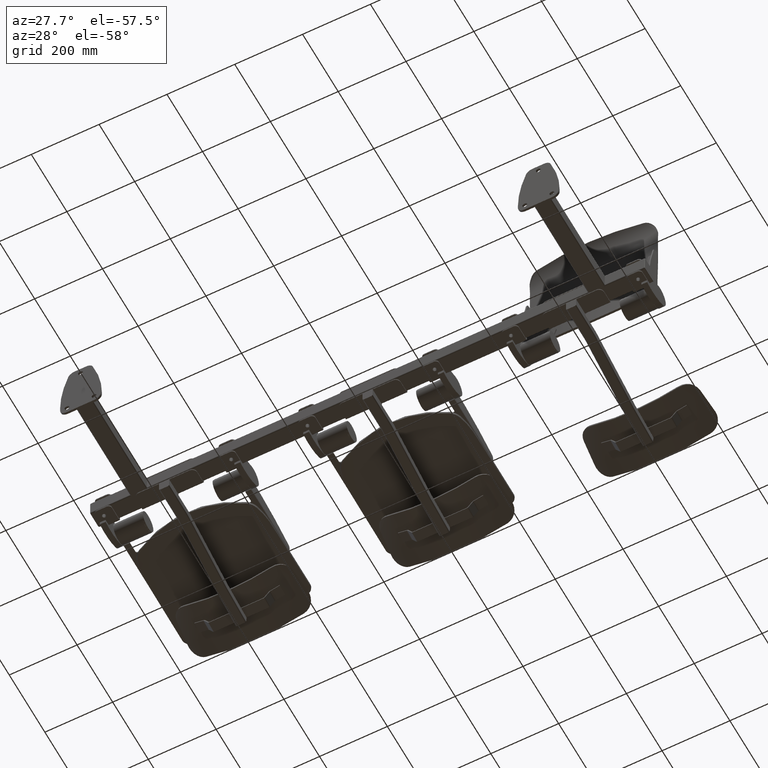
[diagram: clean part render]
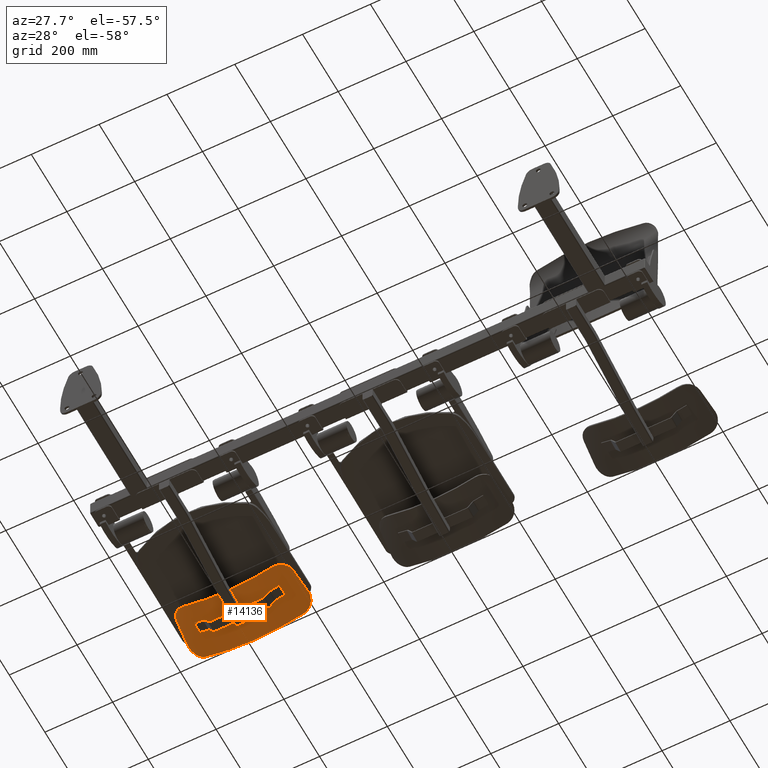
[diagram: same view with one face highlighted and labeled with its STEP entity id]
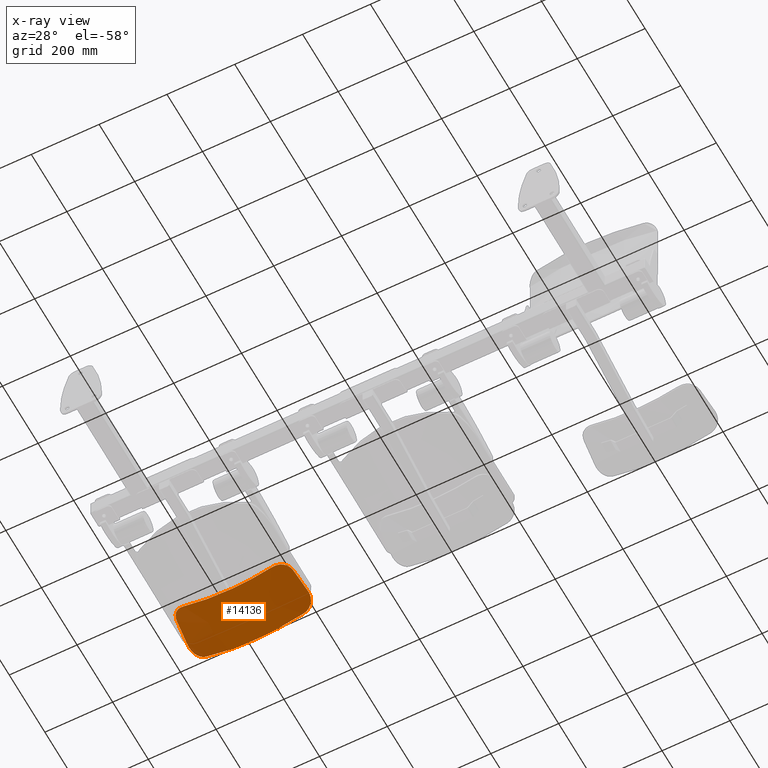
[diagram: x-ray of the same camera — body ghosted, the highlighted face saturated]
A machine part, auxiliary view. The second image highlights one B-rep face of the part: STEP entity #14136.
The next image is the same camera in x-ray: the body ghosted, the highlighted face saturated — about 0% of this face is hidden behind the body in this view.
In plain terms, the highlighted face is a freeform B-spline surface patch.
Its self-contained STEP definition (entity closure, byte-faithful):
#97 = B_SPLINE_CURVE_WITH_KNOTS ( 'NONE', 3,
 ( #20844, #20789, #20846, #20847, #20848, #20849, #20850, #20851, #20852, #20853, #20854, #20855, #20856, #20857, #20858, #20859, #20860, #20861 ),
 .UNSPECIFIED., .F., .F.,
 ( 4, 2, 2, 2, 2, 2, 2, 2, 4 ),
 ( 0.1108544489152107900, 0.1249999999999998900, 0.2499999999999999200, 0.3749999999999999400, 0.4999999999999999400, 0.6249999999999998900, 0.7500000000000000000, 0.8749999999999998900, 0.8891448651407295500 ),
 .UNSPECIFIED. ) ;
#107 = B_SPLINE_CURVE_WITH_KNOTS ( 'NONE', 3,
 ( #20971, #20958, #20973, #20974, #20975, #20976, #20977, #20978, #20979, #20980, #20981, #20982, #20983, #20984, #20985, #20986, #20987, #20988 ),
 .UNSPECIFIED., .F., .F.,
 ( 4, 2, 2, 2, 2, 2, 2, 2, 4 ),
 ( 0.1162696076019657700, 0.1249999999999999200, 0.2499999999999998900, 0.3749999999999998900, 0.4999999999999998900, 0.6250000000000000000, 0.7500000000000000000, 0.8750000000000001100, 0.8837303923980338600 ),
 .UNSPECIFIED. ) ;
#110 = B_SPLINE_CURVE_WITH_KNOTS ( 'NONE', 3,
 ( #20919, #20905, #20920, #20921, #20922, #20923, #20924, #20925, #20926, #20927, #20928, #20929 ),
 .UNSPECIFIED., .F., .F.,
 ( 4, 2, 2, 2, 2, 4 ),
 ( 0.2723681143558833700, 0.3750000000000001100, 0.5000000000000000000, 0.5625000000000000000, 0.6250000000000000000, 0.7400659818056118900 ),
 .UNSPECIFIED. ) ;
#895 = VERTEX_POINT ( 'NONE', #11287 ) ;
#1455 = ORIENTED_EDGE ( 'NONE', *, *, #14450, .F. ) ;
#1457 = ORIENTED_EDGE ( 'NONE', *, *, #14456, .F. ) ;
#1461 = ORIENTED_EDGE ( 'NONE', *, *, #14445, .F. ) ;
#1462 = ORIENTED_EDGE ( 'NONE', *, *, #14465, .T. ) ;
#1464 = ORIENTED_EDGE ( 'NONE', *, *, #14464, .T. ) ;
#1470 = ORIENTED_EDGE ( 'NONE', *, *, #14467, .T. ) ;
#1473 = ORIENTED_EDGE ( 'NONE', *, *, #14454, .F. ) ;
#1476 = ORIENTED_EDGE ( 'NONE', *, *, #14466, .T. ) ;
#4345 = EDGE_LOOP ( 'NONE', ( #1455, #1464, #1461, #1462, #1457, #1476, #1473, #1470 ) ) ;
#5401 = B_SPLINE_CURVE_WITH_KNOTS ( 'NONE', 3,
 ( #21247, #21246, #21280, #21281, #21282, #21283, #21284, #21285, #21286, #21287, #21288, #21289, #21290, #21291, #21292, #21293, #21294, #21295, #21296, #21297, #21298, #21299, #21300, #21301, #21302, #21303, #21304, #21305, #21306, #21307, #21308, #21309 ),
 .UNSPECIFIED., .F., .F.,
 ( 4, 2, 2, 2, 2, 2, 2, 2, 2, 2, 2, 2, 2, 2, 2, 4 ),
 ( 0.0000000000000000000, 0.008231823799229586200, 0.01234773569884438000, 0.01440569164865177600, 0.01646364759845917200, 0.02469547139768877400, 0.02881138329730354600, 0.03086933924711095600, 0.03292729519691836600, 0.04115911899614813800, 0.04527503089576302700, 0.04939094279537791000, 0.05762276659460766800, 0.05968072254441510200, 0.06173867849422252900, 0.06585459039383743900 ),
 .UNSPECIFIED. ) ;
#5405 = B_SPLINE_CURVE_WITH_KNOTS ( 'NONE', 3,
 ( #21212, #21213, #21248, #21249, #21250, #21251, #21252, #21253, #21254, #21255, #21256, #21257, #21258, #21259, #21260, #21261, #21262, #21263, #21264, #21265, #21266, #21267, #21268, #21269, #21270, #21271, #21272, #21273, #21274, #21275, #21276, #21277 ),
 .UNSPECIFIED., .F., .F.,
 ( 4, 2, 2, 2, 2, 2, 2, 2, 2, 2, 2, 2, 2, 2, 2, 4 ),
 ( 0.0000000000000000000, 0.008231700983185012400, 0.01234755147477750700, 0.01440547672057374500, 0.01646340196636998000, 0.02469510294955501100, 0.02881095344114753200, 0.03086887868694378500, 0.03292680393274004900, 0.04115850491592492500, 0.04527435540751736900, 0.04939020589910980000, 0.05762190688229469600, 0.05967983212809094300, 0.06173775737388717500, 0.06585360786547966900 ),
 .UNSPECIFIED. ) ;
#5409 = B_SPLINE_CURVE_WITH_KNOTS ( 'NONE', 3,
 ( #21178, #21179, #21214, #21215, #21216, #21217, #21218, #21219, #21220, #21221, #21222, #21223, #21224, #21225, #21226, #21227, #21228, #21229, #21230, #21231, #21232, #21233, #21234, #21235, #21236, #21237, #21238, #21239, #21240, #21241, #21242, #21243, #21244, #21245 ),
 .UNSPECIFIED., .F., .F.,
 ( 4, 2, 2, 2, 2, 2, 2, 2, 2, 2, 2, 2, 2, 2, 2, 2, 4 ),
 ( 0.0000000000000000000, 0.008156312601817594700, 0.01223446890272639000, 0.01427354705318075900, 0.01631262520363512700, 0.02446893780545257900, 0.02650801595590697100, 0.02854709410636136300, 0.03262525040727020500, 0.03670340670817905100, 0.03874248485863344300, 0.04078156300908783400, 0.04893787561090535300, 0.05301603191181411500, 0.05505511006226850700, 0.05709418821272288500, 0.06525050081454042400 ),
 .UNSPECIFIED. ) ;
#5414 = B_SPLINE_CURVE_WITH_KNOTS ( 'NONE', 3,
 ( #21145, #21144, #21180, #21181, #21182, #21183, #21184, #21185, #21186, #21187, #21188, #21189, #21190, #21191, #21192, #21193, #21194, #21195, #21196, #21197, #21198, #21199, #21200, #21201, #21202, #21203, #21204, #21205, #21206, #21207, #21208, #21209, #21210, #21211 ),
 .UNSPECIFIED., .F., .F.,
 ( 4, 2, 2, 2, 2, 2, 2, 2, 2, 2, 2, 2, 2, 2, 2, 2, 4 ),
 ( 0.0000000000000000000, 0.008155868848908414200, 0.01223380327336259600, 0.01427277048558967300, 0.01631173769781674900, 0.02446760654672505400, 0.02650657375895207000, 0.02854554097117909000, 0.03262347539563312900, 0.03670140982008717600, 0.03874037703231415800, 0.04077934424454114600, 0.04893521309344918400, 0.05301314751790319600, 0.05505211473013020600, 0.05709108194235721500, 0.06524695079126512100 ),
 .UNSPECIFIED. ) ;
#5463 = B_SPLINE_CURVE_WITH_KNOTS ( 'NONE', 3,
 ( #21000, #20990, #20989, #21001, #21002, #21003, #21004, #21005, #21006, #21007, #21008, #21009 ),
 .UNSPECIFIED., .F., .F.,
 ( 4, 2, 2, 2, 2, 4 ),
 ( 0.2599340181943893800, 0.3749999999999999400, 0.4375000000000000000, 0.5000000000000000000, 0.6250000000000000000, 0.7276299605303314700 ),
 .UNSPECIFIED. ) ;
#10907 = FACE_OUTER_BOUND ( 'NONE', #4345, .T. ) ;
#11248 = VERTEX_POINT ( 'NONE', #22773 ) ;
#11287 = CARTESIAN_POINT ( 'NONE',  ( 144.1624299881570400, 154.9999999999998600, 45.20710414002948600 ) ) ;
#12838 = VERTEX_POINT ( 'NONE', #23032 ) ;
#14136 = ADVANCED_FACE ( 'NONE', ( #10907 ), #22152, .F. ) ;
#14445 = EDGE_CURVE ( 'NONE', #895, #11248, #97, .T. ) ;
#14450 = EDGE_CURVE ( 'NONE', #22184, #22185, #110, .T. ) ;
#14454 = EDGE_CURVE ( 'NONE', #22190, #12838, #107, .T. ) ;
#14456 = EDGE_CURVE ( 'NONE', #22186, #22188, #5463, .T. ) ;
#14464 = EDGE_CURVE ( 'NONE', #22184, #11248, #5414, .T. ) ;
#14465 = EDGE_CURVE ( 'NONE', #895, #22188, #5409, .T. ) ;
#14466 = EDGE_CURVE ( 'NONE', #22186, #12838, #5405, .T. ) ;
#14467 = EDGE_CURVE ( 'NONE', #22190, #22185, #5401, .T. ) ;
#19397 = CARTESIAN_POINT ( 'NONE',  ( -167.4999999999999400, 0.0000000000000000000, 64.49999999999994300 ) ) ;
#19405 = CARTESIAN_POINT ( 'NONE',  ( -168.5914791579622000, 11.66738367624997600, 65.25309056229387700 ) ) ;
#19406 = CARTESIAN_POINT ( 'NONE',  ( -170.6185608308821600, 33.33590519452511800, 66.65172109567493000 ) ) ;
#19407 = CARTESIAN_POINT ( 'NONE',  ( -172.6746097194041700, 55.31566962807468700, 67.51349426770454400 ) ) ;
#19408 = CARTESIAN_POINT ( 'NONE',  ( -174.5467117177509500, 75.32681104483067700, 68.11579973968629500 ) ) ;
#19409 = CARTESIAN_POINT ( 'NONE',  ( -176.4243382472012300, 95.39814877623979300, 68.57744446168921100 ) ) ;
#19410 = CARTESIAN_POINT ( 'NONE',  ( -179.1926750639894400, 124.9906517169384000, 66.95068100640462200 ) ) ;
#19411 = CARTESIAN_POINT ( 'NONE',  ( -181.0642250213256500, 144.9968881589977900, 64.84981196530134200 ) ) ;
#19412 = CARTESIAN_POINT ( 'NONE',  ( -182.0000000000001700, 155.0000000000000000, 63.80000000000002600 ) ) ;
#19413 = CARTESIAN_POINT ( 'NONE',  ( -154.6571283212084900, 0.0000000000000000000, 57.71986695851752100 ) ) ;
#19414 = CARTESIAN_POINT ( 'NONE',  ( -155.6762664627499600, 11.66738367624997600, 58.39479436469395800 ) ) ;
#19415 = CARTESIAN_POINT ( 'NONE',  ( -157.5689972893737300, 33.33590519452511800, 59.64826124551459000 ) ) ;
#19416 = CARTESIAN_POINT ( 'NONE',  ( -159.5158178571734300, 55.31566962807468700, 60.28653911574905100 ) ) ;
#19417 = CARTESIAN_POINT ( 'NONE',  ( -161.2739626834781500, 75.32681104483067700, 60.72769316873909400 ) ) ;
#19418 = CARTESIAN_POINT ( 'NONE',  ( -163.0242000741272900, 95.39814877623979300, 61.06603398131417700 ) ) ;
#19419 = CARTESIAN_POINT ( 'NONE',  ( -165.6540993047142400, 124.9906517169384000, 59.12050371882956800 ) ) ;
#19420 = CARTESIAN_POINT ( 'NONE',  ( -167.3456108185948500, 144.9968881589977900, 57.04594139340942100 ) ) ;
#19421 = CARTESIAN_POINT ( 'NONE',  ( -168.1913665755409700, 154.9999999999999700, 56.00928278594975000 ) ) ;
#19422 = CARTESIAN_POINT ( 'NONE',  ( -128.1471568551529000, 0.0000000000000000000, 45.72092201295564700 ) ) ;
#19423 = CARTESIAN_POINT ( 'NONE',  ( -129.0079820283047000, 11.66738367625003300, 46.25616529219157500 ) ) ;
#19424 = CARTESIAN_POINT ( 'NONE',  ( -130.6066959564221600, 33.33590519452527400, 47.25021252981208200 ) ) ;
#19425 = CARTESIAN_POINT ( 'NONE',  ( -132.2897645386945800, 55.31566962807456600, 47.48680232434819700 ) ) ;
#19426 = CARTESIAN_POINT ( 'NONE',  ( -133.7892944625101000, 75.32681104483053500, 47.63897793636257200 ) ) ;
#19427 = CARTESIAN_POINT ( 'NONE',  ( -135.2634841998795700, 95.39814877623980700, 47.75695150643785800 ) ) ;
#19428 = CARTESIAN_POINT ( 'NONE',  ( -137.5493525209828600, 124.9906517169382600, 45.23725119491820100 ) ) ;
#19429 = CARTESIAN_POINT ( 'NONE',  ( -138.8980631781968800, 144.9968881589974500, 43.21421288176237900 ) ) ;
#19430 = CARTESIAN_POINT ( 'NONE',  ( -139.5724185068084500, 154.9999999999995700, 42.20331628043504700 ) ) ;
#19431 = CARTESIAN_POINT ( 'NONE',  ( -86.49456789015570700, 0.0000000000000000000, 32.67252719033481200 ) ) ;
#19432 = CARTESIAN_POINT ( 'NONE',  ( -87.08636864646285900, 11.66738367624993300, 33.05391549936027900 ) ) ;
#19433 = CARTESIAN_POINT ( 'NONE',  ( -88.18545373515117100, 33.33590519452499000, 33.76222517788389200 ) ) ;
#19434 = CARTESIAN_POINT ( 'NONE',  ( -89.36754029775399000, 55.31566962807480100, 33.55313173202582500 ) ) ;
#19435 = CARTESIAN_POINT ( 'NONE',  ( -90.40782901121770000, 75.32681104483081900, 33.38558266815417100 ) ) ;
#19436 = CARTESIAN_POINT ( 'NONE',  ( -91.41864212744825100, 95.39814877623977900, 33.26076607913681500 ) ) ;
#19437 = CARTESIAN_POINT ( 'NONE',  ( -93.03193745384929500, 124.9906517169385200, 30.10246915494789400 ) ) ;
#19438 = CARTESIAN_POINT ( 'NONE',  ( -93.90740986872458500, 144.9968881589979900, 28.14257557601400000 ) ) ;
#19439 = CARTESIAN_POINT ( 'NONE',  ( -94.34514607616525000, 155.0000000000003100, 27.16325134179784200 ) ) ;
#19440 = CARTESIAN_POINT ( 'NONE',  ( -43.56814154813981300, 0.0000000000000000000, 24.76552419062106500 ) ) ;
#19441 = CARTESIAN_POINT ( 'NONE',  ( -43.86946824531045800, 11.66738367625002200, 25.05289609801176800 ) ) ;
#19442 = CARTESIAN_POINT ( 'NONE',  ( -44.42908848261890100, 33.33590519452524600, 25.58659967130881400 ) ) ;
#19443 = CARTESIAN_POINT ( 'NONE',  ( -45.03834742284944100, 55.31566962807459500, 25.10385673885546300 ) ) ;
#19444 = CARTESIAN_POINT ( 'NONE',  ( -45.57079958893816500, 75.32681104483059200, 24.74037496084744300 ) ) ;
#19445 = CARTESIAN_POINT ( 'NONE',  ( -46.08468793822393600, 95.39814877623989300, 24.46719994773074100 ) ) ;
#19446 = CARTESIAN_POINT ( 'NONE',  ( -46.91851995438593500, 124.9906517169382600, 20.91600221217514400 ) ) ;
#19447 = CARTESIAN_POINT ( 'NONE',  ( -47.34902690035995200, 144.9968881589975600, 18.99728006048371400 ) ) ;
#19448 = CARTESIAN_POINT ( 'NONE',  ( -47.56428037334843900, 154.9999999999997400, 18.03854153988893200 ) ) ;
#19449 = CARTESIAN_POINT ( 'NONE',  ( -14.52272553683034100, 0.0000000000000000000, 22.99999999999996400 ) ) ;
#19450 = CARTESIAN_POINT ( 'NONE',  ( -14.62316832429198100, 11.66738367624997600, 23.26629459767550400 ) ) ;
#19451 = CARTESIAN_POINT ( 'NONE',  ( -14.80970943426657100, 33.33590519452511800, 23.76085365050564500 ) ) ;
#19452 = CARTESIAN_POINT ( 'NONE',  ( -15.01279618551010300, 55.31566962807468700, 23.21662865062192800 ) ) ;
#19453 = CARTESIAN_POINT ( 'NONE',  ( -15.19028214890104800, 75.32681104483066300, 22.80915659002406300 ) ) ;
#19454 = CARTESIAN_POINT ( 'NONE',  ( -15.36158140067673000, 95.39814877623979300, 22.50270808379119500 ) ) ;
#19455 = CARTESIAN_POINT ( 'NONE',  ( -15.63951190945444800, 124.9906810397648900, 18.86372767841337600 ) ) ;
#19456 = CARTESIAN_POINT ( 'NONE',  ( -15.78301519297636800, 144.9968881589977900, 16.95399528461244300 ) ) ;
#19457 = CARTESIAN_POINT ( 'NONE',  ( -15.85476684661085400, 154.9999999999999700, 15.99999999999995900 ) ) ;
#19458 = CARTESIAN_POINT ( 'NONE',  ( 14.52272553683043000, 0.0000000000000000000, 22.99999999999996400 ) ) ;
#19459 = CARTESIAN_POINT ( 'NONE',  ( 14.62316832429198100, 11.66738367624997600, 23.26629459767550400 ) ) ;
#19460 = CARTESIAN_POINT ( 'NONE',  ( 14.80970943426657100, 33.33590519452511800, 23.76085365050563800 ) ) ;
#19461 = CARTESIAN_POINT ( 'NONE',  ( 15.01279618551010500, 55.31566962807468700, 23.21662865062192100 ) ) ;
#19462 = CARTESIAN_POINT ( 'NONE',  ( 15.19028214890105000, 75.32681104483064900, 22.80915659002406300 ) ) ;
#19463 = CARTESIAN_POINT ( 'NONE',  ( 15.36158140067673000, 95.39814877623976500, 22.50270808379119500 ) ) ;
#19464 = CARTESIAN_POINT ( 'NONE',  ( 15.63951187779301400, 124.9907396854178600, 18.86472110656142900 ) ) ;
#19465 = CARTESIAN_POINT ( 'NONE',  ( 15.78301519297636100, 144.9968881589977900, 16.95399528461244300 ) ) ;
#19466 = CARTESIAN_POINT ( 'NONE',  ( 15.85476684661084700, 154.9999999999999700, 15.99999999999995900 ) ) ;
#19467 = CARTESIAN_POINT ( 'NONE',  ( 43.56814154813977800, 0.0000000000000000000, 24.76552419062105100 ) ) ;
#19468 = CARTESIAN_POINT ( 'NONE',  ( 43.86946824531038700, 11.66738367625001700, 25.05289609801174700 ) ) ;
#19469 = CARTESIAN_POINT ( 'NONE',  ( 44.42908848261896500, 33.33590519452523200, 25.58659967130878200 ) ) ;
#19470 = CARTESIAN_POINT ( 'NONE',  ( 45.03834742284914900, 55.31566962807460200, 25.10385673885552600 ) ) ;
#19471 = CARTESIAN_POINT ( 'NONE',  ( 45.57079958893778100, 75.32681104483050700, 24.74037496084746100 ) ) ;
#19472 = CARTESIAN_POINT ( 'NONE',  ( 46.08468793822368800, 95.39814877623962300, 24.46719994773058800 ) ) ;
#19473 = CARTESIAN_POINT ( 'NONE',  ( 46.91851995438561600, 124.9907103625917700, 20.91699564032395700 ) ) ;
#19474 = CARTESIAN_POINT ( 'NONE',  ( 47.34902690035969600, 144.9968881589975600, 18.99728006048369600 ) ) ;
#19475 = CARTESIAN_POINT ( 'NONE',  ( 47.56428037334821100, 154.9999999999994600, 18.03854153988878300 ) ) ;
#19476 = CARTESIAN_POINT ( 'NONE',  ( 86.49456789015600600, 0.0000000000000000000, 32.67252719033479000 ) ) ;
#19478 = CARTESIAN_POINT ( 'NONE',  ( 87.08636864646301500, 11.66738367624996200, 33.05391549936027900 ) ) ;
#19479 = CARTESIAN_POINT ( 'NONE',  ( 88.18545373515129900, 33.33590519452507600, 33.76222517788392700 ) ) ;
#19480 = CARTESIAN_POINT ( 'NONE',  ( 89.36754029775424600, 55.31566962807471600, 33.55313173202571200 ) ) ;
#19481 = CARTESIAN_POINT ( 'NONE',  ( 90.40782901121804100, 75.32681104483077700, 33.38558266815412900 ) ) ;
#19482 = CARTESIAN_POINT ( 'NONE',  ( 91.41864212744862100, 95.39814877623999200, 33.26076607913702800 ) ) ;
#19483 = CARTESIAN_POINT ( 'NONE',  ( 93.03193745384993500, 124.9907103625910500, 30.10346258309611800 ) ) ;
#19484 = CARTESIAN_POINT ( 'NONE',  ( 93.90740986872482700, 144.9968881589978800, 28.14257557601397500 ) ) ;
#19486 = CARTESIAN_POINT ( 'NONE',  ( 94.34514607616526400, 155.0000000000003700, 27.16325134179797400 ) ) ;
#19487 = CARTESIAN_POINT ( 'NONE',  ( 128.1471568551528400, 0.0000000000000000000, 45.72092201295564700 ) ) ;
#19488 = CARTESIAN_POINT ( 'NONE',  ( 129.0079820283045300, 11.66738367624999900, 46.25616529219154000 ) ) ;
#19489 = CARTESIAN_POINT ( 'NONE',  ( 130.6066959564219300, 33.33590519452518200, 47.25021252981198200 ) ) ;
#19490 = CARTESIAN_POINT ( 'NONE',  ( 132.2897645386941900, 55.31566962807458100, 47.48680232434828200 ) ) ;
#19491 = CARTESIAN_POINT ( 'NONE',  ( 133.7892944625096200, 75.32681104483052100, 47.63897793636260000 ) ) ;
#19492 = CARTESIAN_POINT ( 'NONE',  ( 135.2634841998791400, 95.39814877623972200, 47.75695150643760900 ) ) ;
#19493 = CARTESIAN_POINT ( 'NONE',  ( 137.5493525209821000, 124.9907103625915100, 45.23824462306704000 ) ) ;
#19494 = CARTESIAN_POINT ( 'NONE',  ( 138.8980631781965400, 144.9968881589975900, 43.21421288176238600 ) ) ;
#19495 = CARTESIAN_POINT ( 'NONE',  ( 139.5724185068083600, 154.9999999999996900, 42.20331628043491900 ) ) ;
#19496 = CARTESIAN_POINT ( 'NONE',  ( 154.6571283212086000, -0.0000000000000000000, 57.71986695851750700 ) ) ;
#19497 = CARTESIAN_POINT ( 'NONE',  ( 155.6762664627499400, 11.66738367624997600, 58.39479436469391500 ) ) ;
#19498 = CARTESIAN_POINT ( 'NONE',  ( 157.5689972893735800, 33.33590519452511800, 59.64826124551451200 ) ) ;
#19499 = CARTESIAN_POINT ( 'NONE',  ( 159.5158178571733700, 55.31566962807468700, 60.28653911574902900 ) ) ;
#19500 = CARTESIAN_POINT ( 'NONE',  ( 161.2739626834781200, 75.32681104483066300, 60.72769316873910800 ) ) ;
#19501 = CARTESIAN_POINT ( 'NONE',  ( 163.0242000741272900, 95.39814877623977900, 61.06603398131417700 ) ) ;
#19502 = CARTESIAN_POINT ( 'NONE',  ( 165.6540993047141800, 124.9907103625914000, 59.12149714697807900 ) ) ;
#19503 = CARTESIAN_POINT ( 'NONE',  ( 167.3456108185948200, 144.9968881589977900, 57.04594139340937200 ) ) ;
#19504 = CARTESIAN_POINT ( 'NONE',  ( 168.1913665755409100, 154.9999999999999700, 56.00928278594970100 ) ) ;
#19505 = CARTESIAN_POINT ( 'NONE',  ( 167.5000000000000300, 0.0000000000000000000, 64.49999999999994300 ) ) ;
#19506 = CARTESIAN_POINT ( 'NONE',  ( 168.5914791579620800, 11.66738367624997600, 65.25309056229383500 ) ) ;
#19507 = CARTESIAN_POINT ( 'NONE',  ( 170.6185608308820200, 33.33590519452511800, 66.65172109567484400 ) ) ;
#19508 = CARTESIAN_POINT ( 'NONE',  ( 172.6746097194041500, 55.31566962807468700, 67.51349426770453000 ) ) ;
#19509 = CARTESIAN_POINT ( 'NONE',  ( 174.5467117177509800, 75.32681104483066300, 68.11579973968632400 ) ) ;
#19510 = CARTESIAN_POINT ( 'NONE',  ( 176.4243382472012100, 95.39814877623977900, 68.57744446168924000 ) ) ;
#19511 = CARTESIAN_POINT ( 'NONE',  ( 179.1926750639893600, 124.9907103625914000, 66.95167443455309800 ) ) ;
#19512 = CARTESIAN_POINT ( 'NONE',  ( 181.0642250213255700, 144.9968881589977900, 64.84981196530128500 ) ) ;
#19513 = CARTESIAN_POINT ( 'NONE',  ( 182.0000000000000900, 155.0000000000000000, 63.79999999999996900 ) ) ;
#20789 = CARTESIAN_POINT ( 'NONE',  ( 142.5097325502492500, 154.9999999999998600, 44.50873524981440000 ) ) ;
#20844 = CARTESIAN_POINT ( 'NONE',  ( 144.1624299881570400, 154.9999999999998600, 45.20710414002948600 ) ) ;
#20846 = CARTESIAN_POINT ( 'NONE',  ( 140.8519579594737900, 154.9999999999998600, 43.82238310187545900 ) ) ;
#20847 = CARTESIAN_POINT ( 'NONE',  ( 124.4966610299273500, 154.9999999999998900, 37.18996130088925900 ) ) ;
#20848 = CARTESIAN_POINT ( 'NONE',  ( 109.4209035530462900, 155.0000000000001400, 32.17660632134362000 ) ) ;
#20849 = CARTESIAN_POINT ( 'NONE',  ( 78.75152417522623700, 155.0000000000000300, 24.12168140782824100 ) ) ;
#20850 = CARTESIAN_POINT ( 'NONE',  ( 63.15790227428723100, 154.9999999999997700, 21.08011147385851200 ) ) ;
#20851 = CARTESIAN_POINT ( 'NONE',  ( 31.70952360997952700, 154.9999999999997200, 17.01927076994436700 ) ) ;
#20852 = CARTESIAN_POINT ( 'NONE',  ( 15.85476684661084700, 154.9999999999999700, 15.99999999999995900 ) ) ;
#20853 = CARTESIAN_POINT ( 'NONE',  ( -15.85476684661085400, 154.9999999999999700, 15.99999999999995900 ) ) ;
#20854 = CARTESIAN_POINT ( 'NONE',  ( -31.70952360997965500, 154.9999999999998600, 17.01927076994444500 ) ) ;
#20855 = CARTESIAN_POINT ( 'NONE',  ( -63.15790227428737300, 154.9999999999999700, 21.08011147385856900 ) ) ;
#20856 = CARTESIAN_POINT ( 'NONE',  ( -78.75152417522630800, 155.0000000000001400, 24.12168140782820900 ) ) ;
#20857 = CARTESIAN_POINT ( 'NONE',  ( -109.4209035530463300, 155.0000000000000300, 32.17660632134357700 ) ) ;
#20858 = CARTESIAN_POINT ( 'NONE',  ( -124.4966610299274000, 154.9999999999998300, 37.18996130088931600 ) ) ;
#20859 = CARTESIAN_POINT ( 'NONE',  ( -140.8518773329738800, 154.9999999999998000, 43.82235040610983400 ) ) ;
#20860 = CARTESIAN_POINT ( 'NONE',  ( -142.5095717730964700, 154.9999999999998000, 44.50866868486064500 ) ) ;
#20861 = CARTESIAN_POINT ( 'NONE',  ( -144.1621895610110200, 154.9999999999998000, 45.20700254449839400 ) ) ;
#20905 = CARTESIAN_POINT ( 'NONE',  ( -177.5685703785661100, 107.6295622367253100, 67.83849483964284800 ) ) ;
#20919 = CARTESIAN_POINT ( 'NONE',  ( -178.0628897916362500, 112.9136620531424900, 67.53520387190457100 ) ) ;
#20920 = CARTESIAN_POINT ( 'NONE',  ( -177.0740029366554300, 102.3428076310682800, 68.05516434625526800 ) ) ;
#20921 = CARTESIAN_POINT ( 'NONE',  ( -175.9750978267150600, 90.59586382128429700, 68.29557739853355300 ) ) ;
#20922 = CARTESIAN_POINT ( 'NONE',  ( -175.3701360114876600, 84.12898025645917200, 68.25604304031898600 ) ) ;
#20923 = CARTESIAN_POINT ( 'NONE',  ( -174.4619719506492300, 74.42114229524713700, 68.06874254729119400 ) ) ;
#20924 = CARTESIAN_POINT ( 'NONE',  ( -174.1591360562106300, 71.18400542341903800, 67.98529920278318200 ) ) ;
#20925 = CARTESIAN_POINT ( 'NONE',  ( -173.5535120874082200, 64.71035329112407900, 67.79895604911689600 ) ) ;
#20926 = CARTESIAN_POINT ( 'NONE',  ( -173.2507484313195800, 61.47406442905905500, 67.69733828905404500 ) ) ;
#20927 = CARTESIAN_POINT ( 'NONE',  ( -172.3907433242305300, 52.28095549020263600, 67.38014877209327800 ) ) ;
#20928 = CARTESIAN_POINT ( 'NONE',  ( -171.8336031619723200, 46.32508815358781400, 67.14103636609095800 ) ) ;
#20929 = CARTESIAN_POINT ( 'NONE',  ( -171.2764507856879800, 40.36912100245280800, 66.86223930451242800 ) ) ;
#20958 = CARTESIAN_POINT ( 'NONE',  ( -129.7265025656380700, 0.0000000000000000000, 47.27275247634625500 ) ) ;
#20971 = CARTESIAN_POINT ( 'NONE',  ( -130.6711428496894600, 0.0000000000000000000, 47.64218734923665700 ) ) ;
#20973 = CARTESIAN_POINT ( 'NONE',  ( -128.7802943956305300, 0.0000000000000000000, 46.90732691700491600 ) ) ;
#20974 = CARTESIAN_POINT ( 'NONE',  ( -114.2629605334871900, 0.0000000000000000000, 41.37145707208203800 ) ) ;
#20975 = CARTESIAN_POINT ( 'NONE',  ( -100.3787642118214300, 0.0000000000000000000, 37.02199213120842100 ) ) ;
#20976 = CARTESIAN_POINT ( 'NONE',  ( -72.18575910948374000, 0.0000000000000000000, 30.03685952376356400 ) ) ;
#20977 = CARTESIAN_POINT ( 'NONE',  ( -57.87695032881178000, 0.0000000000000000000, 27.40119185719231300 ) ) ;
#20978 = CARTESIAN_POINT ( 'NONE',  ( -29.04543354248508200, 0.0000000000000000000, 23.88276209531051500 ) ) ;
#20979 = CARTESIAN_POINT ( 'NONE',  ( -14.52272553683034100, 0.0000000000000000000, 22.99999999999996400 ) ) ;
#20980 = CARTESIAN_POINT ( 'NONE',  ( 14.52272553683043000, 0.0000000000000000000, 22.99999999999996400 ) ) ;
#20981 = CARTESIAN_POINT ( 'NONE',  ( 29.04543354248509200, 0.0000000000000000000, 23.88276209531050400 ) ) ;
#20982 = CARTESIAN_POINT ( 'NONE',  ( 57.87695032881185100, 0.0000000000000000000, 27.40119185719230200 ) ) ;
#20983 = CARTESIAN_POINT ( 'NONE',  ( 72.18575910948393900, 0.0000000000000000000, 30.03685952376354600 ) ) ;
#20984 = CARTESIAN_POINT ( 'NONE',  ( 100.3787642118216200, 0.0000000000000000000, 37.02199213120840700 ) ) ;
#20985 = CARTESIAN_POINT ( 'NONE',  ( 114.2629605334872200, 0.0000000000000000000, 41.37145707208202300 ) ) ;
#20986 = CARTESIAN_POINT ( 'NONE',  ( 128.7802943956305900, 0.0000000000000000000, 46.90732691700488700 ) ) ;
#20987 = CARTESIAN_POINT ( 'NONE',  ( 129.7265025656381000, 0.0000000000000000000, 47.27275247634621300 ) ) ;
#20988 = CARTESIAN_POINT ( 'NONE',  ( 130.6711428496894000, 0.0000000000000000000, 47.64218734923660000 ) ) ;
#20989 = CARTESIAN_POINT ( 'NONE',  ( 172.3907433242305000, 52.28095549020270000, 67.38014877209325000 ) ) ;
#20990 = CARTESIAN_POINT ( 'NONE',  ( 171.8336031619722600, 46.32508815358795600, 67.14103636609093000 ) ) ;
#21000 = CARTESIAN_POINT ( 'NONE',  ( 171.2764507856879600, 40.36912100245302100, 66.86223930451240000 ) ) ;
#21001 = CARTESIAN_POINT ( 'NONE',  ( 173.2507484313195200, 61.47406442905905500, 67.69733828905403100 ) ) ;
#21002 = CARTESIAN_POINT ( 'NONE',  ( 173.5535120874082200, 64.71035327946953000, 67.79895585169505500 ) ) ;
#21003 = CARTESIAN_POINT ( 'NONE',  ( 174.1591360562106300, 71.18400544108266100, 67.98529950199679200 ) ) ;
#21004 = CARTESIAN_POINT ( 'NONE',  ( 174.4619719506492300, 74.42114239909068400, 68.06874430634906000 ) ) ;
#21005 = CARTESIAN_POINT ( 'NONE',  ( 175.3701360114876600, 84.12898188024107100, 68.25607054637562500 ) ) ;
#21006 = CARTESIAN_POINT ( 'NONE',  ( 175.9750978267150600, 90.59586826057520200, 68.29565259791050400 ) ) ;
#21007 = CARTESIAN_POINT ( 'NONE',  ( 177.0739936430655900, 102.3427255340620500, 68.05545856035125500 ) ) ;
#21008 = CARTESIAN_POINT ( 'NONE',  ( 177.5685518249048900, 107.6293890856914700, 67.83892952452454500 ) ) ;
#21009 = CARTESIAN_POINT ( 'NONE',  ( 178.0628619751018100, 112.9133948569881200, 67.53573171157100300 ) ) ;
#21144 = CARTESIAN_POINT ( 'NONE',  ( -178.3193419386846900, 115.6550448661744400, 67.37785698687368100 ) ) ;
#21145 = CARTESIAN_POINT ( 'NONE',  ( -178.0628897916362500, 112.9136620531424900, 67.53520387190457100 ) ) ;
#21178 = CARTESIAN_POINT ( 'NONE',  ( 144.1624299881570400, 154.9999999999998600, 45.20710414002948600 ) ) ;
#21179 = CARTESIAN_POINT ( 'NONE',  ( 146.7025425511465600, 154.9999999999998900, 46.28046188292165700 ) ) ;
#21180 = CARTESIAN_POINT ( 'NONE',  ( -178.3375237351515400, 118.3612821446025700, 67.06470894583948400 ) ) ;
#21181 = CARTESIAN_POINT ( 'NONE',  ( -178.0185605454850900, 122.3706424944546300, 66.37570444774891600 ) ) ;
#21182 = CARTESIAN_POINT ( 'NONE',  ( -177.8540172345151400, 123.6987081688411800, 66.10929041084274600 ) ) ;
#21183 = CARTESIAN_POINT ( 'NONE',  ( -177.5165460167965300, 125.6780806347354800, 65.65466598746434100 ) ) ;
#21184 = CARTESIAN_POINT ( 'NONE',  ( -177.3884747788384600, 126.3375233671163800, 65.49345630445390000 ) ) ;
#21185 = CARTESIAN_POINT ( 'NONE',  ( -177.1041132545654200, 127.6389365577660900, 65.15611517179927100 ) ) ;
#21186 = CARTESIAN_POINT ( 'NONE',  ( -176.9477614124532500, 128.2818097911735700, 64.97983393342553900 ) ) ;
#21187 = CARTESIAN_POINT ( 'NONE',  ( -176.0959105348144600, 131.4578697193765600, 64.06205717800224900 ) ) ;
#21188 = CARTESIAN_POINT ( 'NONE',  ( -175.1923638885708400, 133.8773120737217500, 63.21248114467323400 ) ) ;
#21189 = CARTESIAN_POINT ( 'NONE',  ( -173.7747787857510700, 136.7515081642906700, 62.02239154284039600 ) ) ;
#21190 = CARTESIAN_POINT ( 'NONE',  ( -173.4767139613934700, 137.3187686034260400, 61.77790415602539300 ) ) ;
#21191 = CARTESIAN_POINT ( 'NONE',  ( -172.8506373789949200, 138.4378694495529500, 61.27613737075903100 ) ) ;
#21192 = CARTESIAN_POINT ( 'NONE',  ( -172.5237523151923800, 138.9875297619000200, 61.01979002698238500 ) ) ;
#21193 = CARTESIAN_POINT ( 'NONE',  ( -171.5087771199066800, 140.5957059141408900, 60.24064226257138400 ) ) ;
#21194 = CARTESIAN_POINT ( 'NONE',  ( -170.7837698159842700, 141.6183759876780600, 59.70561677444742100 ) ) ;
#21195 = CARTESIAN_POINT ( 'NONE',  ( -169.2376477584416800, 143.5674530727499700, 58.60803425705748300 ) ) ;
#21196 = CARTESIAN_POINT ( 'NONE',  ( -168.4165329718730700, 144.4938555009048600, 58.04546938947290600 ) ) ;
#21197 = CARTESIAN_POINT ( 'NONE',  ( -167.1111300775880000, 145.8109169565827300, 57.18275097067667900 ) ) ;
#21198 = CARTESIAN_POINT ( 'NONE',  ( -166.6636855631604100, 146.2378235883229300, 56.89202383609854500 ) ) ;
#21199 = CARTESIAN_POINT ( 'NONE',  ( -165.7436237347429300, 147.0670598471754700, 56.30445359318210300 ) ) ;
#21200 = CARTESIAN_POINT ( 'NONE',  ( -165.2696472238153000, 147.4704561040694600, 56.00677631811946400 ) ) ;
#21201 = CARTESIAN_POINT ( 'NONE',  ( -162.8526121224383600, 149.4106631191438600, 54.51426863714823400 ) ) ;
#21202 = CARTESIAN_POINT ( 'NONE',  ( -160.7831005036585500, 150.7110107574440300, 53.31543405514511800 ) ) ;
#21203 = CARTESIAN_POINT ( 'NONE',  ( -157.4776839938385500, 152.2984821954031800, 51.51959529599953700 ) ) ;
#21204 = CARTESIAN_POINT ( 'NONE',  ( -156.3421250966540600, 152.7666479328378800, 50.92131786981766300 ) ) ;
#21205 = CARTESIAN_POINT ( 'NONE',  ( -154.5863360649149500, 153.3748517479561700, 50.02514334478652100 ) ) ;
#21206 = CARTESIAN_POINT ( 'NONE',  ( -153.9924680543406100, 153.5616945222172100, 49.72673440711513800 ) ) ;
#21207 = CARTESIAN_POINT ( 'NONE',  ( -152.8000710726904900, 153.8999231210417800, 49.13688516081343500 ) ) ;
#21208 = CARTESIAN_POINT ( 'NONE',  ( -152.1999482815446900, 154.0518905969228500, 48.84462382823949200 ) ) ;
#21209 = CARTESIAN_POINT ( 'NONE',  ( -149.1799416773245600, 154.7272756525095500, 47.39657399700897900 ) ) ;
#21210 = CARTESIAN_POINT ( 'NONE',  ( -146.7023753760017500, 154.9999999999997400, 46.28038912992178700 ) ) ;
#21211 = CARTESIAN_POINT ( 'NONE',  ( -144.1621895610110200, 154.9999999999998000, 45.20700254449839400 ) ) ;
#21212 = CARTESIAN_POINT ( 'NONE',  ( 171.2764507856879600, 40.36912100245302100, 66.86223930451240000 ) ) ;
#21213 = CARTESIAN_POINT ( 'NONE',  ( 171.0174880952989700, 37.60080600824540700, 66.73265529803215700 ) ) ;
#21214 = CARTESIAN_POINT ( 'NONE',  ( 149.1740805746797800, 154.7273047535876700, 47.39409300655764700 ) ) ;
#21215 = CARTESIAN_POINT ( 'NONE',  ( 152.7816811481172300, 153.9225068358857100, 49.12338432218342600 ) ) ;
#21216 = CARTESIAN_POINT ( 'NONE',  ( 153.9674877595887200, 153.5877585883730800, 49.70965173355225600 ) ) ;
#21217 = CARTESIAN_POINT ( 'NONE',  ( 155.7205168774839000, 152.9827902724017900, 50.60385401152754500 ) ) ;
#21218 = CARTESIAN_POINT ( 'NONE',  ( 156.3021339665003800, 152.7632579614049500, 50.90522633447600500 ) ) ;
#21219 = CARTESIAN_POINT ( 'NONE',  ( 157.4450058477764000, 152.2938841259530700, 51.50676858374097100 ) ) ;
#21220 = CARTESIAN_POINT ( 'NONE',  ( 158.0070801868730300, 152.0438714767632900, 51.80732874936634900 ) ) ;
#21221 = CARTESIAN_POINT ( 'NONE',  ( 160.7716240497210800, 150.7184766396413500, 53.30876605751831900 ) ) ;
#21222 = CARTESIAN_POINT ( 'NONE',  ( 162.8378699816946400, 149.4194456126477100, 54.50588581343400600 ) ) ;
#21223 = CARTESIAN_POINT ( 'NONE',  ( 165.2415010510975400, 147.4939944964157800, 55.98928221263077600 ) ) ;
#21224 = CARTESIAN_POINT ( 'NONE',  ( 165.7131901453482800, 147.0936737155922500, 56.28528885436492100 ) ) ;
#21225 = CARTESIAN_POINT ( 'NONE',  ( 166.6382374438512400, 146.2618744298596600, 56.87565373047375100 ) ) ;
#21226 = CARTESIAN_POINT ( 'NONE',  ( 167.0898039023023200, 145.8318914695828400, 57.16889159525543800 ) ) ;
#21227 = CARTESIAN_POINT ( 'NONE',  ( 168.4025884139920200, 144.5095301921277300, 58.03608266730056200 ) ) ;
#21228 = CARTESIAN_POINT ( 'NONE',  ( 169.2260763939154300, 143.5811991448534300, 58.60015175054104500 ) ) ;
#21229 = CARTESIAN_POINT ( 'NONE',  ( 170.7733435434811300, 141.6327501324215100, 59.69821000219658200 ) ) ;
#21230 = CARTESIAN_POINT ( 'NONE',  ( 171.4971157950682500, 140.6126297324022100, 60.23220431496895300 ) ) ;
#21231 = CARTESIAN_POINT ( 'NONE',  ( 172.5085294736927900, 139.0126995302729800, 61.00821734585133500 ) ) ;
#21232 = CARTESIAN_POINT ( 'NONE',  ( 172.8332708936011100, 138.4677419912386800, 61.26271493964114300 ) ) ;
#21233 = CARTESIAN_POINT ( 'NONE',  ( 173.4577757091426500, 137.3540974104627100, 61.76282178566107500 ) ) ;
#21234 = CARTESIAN_POINT ( 'NONE',  ( 173.7583403935347000, 136.7837373455938600, 62.00911157876800000 ) ) ;
#21235 = CARTESIAN_POINT ( 'NONE',  ( 175.1866973148098100, 133.8939349622270900, 63.20735504437494300 ) ) ;
#21236 = CARTESIAN_POINT ( 'NONE',  ( 176.0909079287475500, 131.4711141165697900, 64.05785906946289300 ) ) ;
#21237 = CARTESIAN_POINT ( 'NONE',  ( 177.1118112408029500, 127.6728975216267200, 65.15677512024971900 ) ) ;
#21238 = CARTESIAN_POINT ( 'NONE',  ( 177.3957510472784500, 126.3792838977573200, 65.49340893005782500 ) ) ;
#21239 = CARTESIAN_POINT ( 'NONE',  ( 177.7357219527191300, 124.3959093435821800, 65.95010172085631000 ) ) ;
#21240 = CARTESIAN_POINT ( 'NONE',  ( 177.8344912435347900, 123.7281823658846800, 66.09407638084545100 ) ) ;
#21241 = CARTESIAN_POINT ( 'NONE',  ( 178.0013521331516700, 122.3927600215357600, 66.36249413940454600 ) ) ;
#21242 = CARTESIAN_POINT ( 'NONE',  ( 178.0697662706537900, 121.7232975745609700, 66.48735668676322100 ) ) ;
#21243 = CARTESIAN_POINT ( 'NONE',  ( 178.3380765647890500, 118.3672685485022100, 67.06493689525574100 ) ) ;
#21244 = CARTESIAN_POINT ( 'NONE',  ( 178.3193127755260200, 115.6547658544375600, 67.37843103346878600 ) ) ;
#21245 = CARTESIAN_POINT ( 'NONE',  ( 178.0628619751018100, 112.9133948569881200, 67.53573171157100300 ) ) ;
#21246 = CARTESIAN_POINT ( 'NONE',  ( -133.2631399785710200, -5.549759870410174200E-015, 48.65587917035384200 ) ) ;
#21247 = CARTESIAN_POINT ( 'NONE',  ( -130.6711428496894600, 0.0000000000000000000, 47.64218734923665700 ) ) ;
#21248 = CARTESIAN_POINT ( 'NONE',  ( 170.5425626706591200, 34.90244384988593400, 66.47689888210783200 ) ) ;
#21249 = CARTESIAN_POINT ( 'NONE',  ( 169.5166371687494100, 30.95547973624330900, 65.91743685329952000 ) ) ;
#21250 = CARTESIAN_POINT ( 'NONE',  ( 169.1220081801175200, 29.65669828548539800, 65.70155317568459500 ) ) ;
#21251 = CARTESIAN_POINT ( 'NONE',  ( 168.4490540417132300, 27.73426316567304200, 65.33417634986834300 ) ) ;
#21252 = CARTESIAN_POINT ( 'NONE',  ( 168.2112121203730100, 27.09774764950268600, 65.20444952732260900 ) ) ;
#21253 = CARTESIAN_POINT ( 'NONE',  ( 167.7078595784028600, 25.83346506036666700, 64.93043568002454400 ) ) ;
#21254 = CARTESIAN_POINT ( 'NONE',  ( 167.4422139004034900, 25.20563908479628500, 64.78607787822801400 ) ) ;
#21255 = CARTESIAN_POINT ( 'NONE',  ( 166.0582828733533600, 22.12112600113174900, 64.03602245377645400 ) ) ;
#21256 = CARTESIAN_POINT ( 'NONE',  ( 164.7641614741670300, 19.80024605805364500, 63.34063863407153900 ) ) ;
#21257 = CARTESIAN_POINT ( 'NONE',  ( 162.5429943144907800, 16.53335552688393400, 62.17098311729359500 ) ) ;
#21258 = CARTESIAN_POINT ( 'NONE',  ( 161.7556486620781600, 15.48035536642857600, 61.75986554759655400 ) ) ;
#21259 = CARTESIAN_POINT ( 'NONE',  ( 160.5015203014390600, 13.95615211051421600, 61.11226286815193000 ) ) ;
#21260 = CARTESIAN_POINT ( 'NONE',  ( 160.0700938930960100, 13.45604773873535700, 60.89063329427459300 ) ) ;
#21261 = CARTESIAN_POINT ( 'NONE',  ( 159.1888862085356200, 12.48203926813305700, 60.44055581280032600 ) ) ;
#21262 = CARTESIAN_POINT ( 'NONE',  ( 158.7393328518565700, 12.00823041759368000, 60.21221681071524000 ) ) ;
#21263 = CARTESIAN_POINT ( 'NONE',  ( 156.4472913526495300, 9.703951555034175100, 59.05503732611240500 ) ) ;
#21264 = CARTESIAN_POINT ( 'NONE',  ( 154.4730334060840300, 8.066183690389438600, 58.08019687967127000 ) ) ;
#21265 = CARTESIAN_POINT ( 'NONE',  ( 151.2968041650725600, 5.914618500400889500, 56.55784473274461300 ) ) ;
#21266 = CARTESIAN_POINT ( 'NONE',  ( 150.2020502635582200, 5.248586831014791600, 56.04028967443879600 ) ) ;
#21267 = CARTESIAN_POINT ( 'NONE',  ( 147.9372250930304100, 4.022175190859484500, 54.98624691473041500 ) ) ;
#21268 = CARTESIAN_POINT ( 'NONE',  ( 146.7840646186590400, 3.471018006258381700, 54.45764976323620500 ) ) ;
#21269 = CARTESIAN_POINT ( 'NONE',  ( 143.2678962877712100, 1.999357582967147100, 52.87183879208746600 ) ) ;
#21270 = CARTESIAN_POINT ( 'NONE',  ( 140.8466167783288400, 1.258155195872860300, 51.81381147002951300 ) ) ;
#21271 = CARTESIAN_POINT ( 'NONE',  ( 137.7207504933844000, 0.6319511471022214400, 50.49635436094951800 ) ) ;
#21272 = CARTESIAN_POINT ( 'NONE',  ( 137.0905813250525100, 0.5218408766280575600, 50.23310585974079600 ) ) ;
#21273 = CARTESIAN_POINT ( 'NONE',  ( 135.8200449846483800, 0.3323679951646841300, 49.70720643607629800 ) ) ;
#21274 = CARTESIAN_POINT ( 'NONE',  ( 135.1795626137742900, 0.2530668798227306300, 49.44451980506085700 ) ) ;
#21275 = CARTESIAN_POINT ( 'NONE',  ( 133.2563041651073400, 0.06326133577879693200, 48.66307768573809500 ) ) ;
#21276 = CARTESIAN_POINT ( 'NONE',  ( 131.9672182408669700, -1.081190499784159400E-015, 48.14906330559805500 ) ) ;
#21277 = CARTESIAN_POINT ( 'NONE',  ( 130.6711428496894000, 0.0000000000000000000, 47.64218734923660000 ) ) ;
#21280 = CARTESIAN_POINT ( 'NONE',  ( -135.8016092041738700, 0.2514142997998257100, 49.68806631567364500 ) ) ;
#21281 = CARTESIAN_POINT ( 'NONE',  ( -139.5330548184884400, 0.9931138269873116500, 51.25990922411242700 ) ) ;
#21282 = CARTESIAN_POINT ( 'NONE',  ( -140.7640956393609000, 1.301495828809666500, 51.78777053473016400 ) ) ;
#21283 = CARTESIAN_POINT ( 'NONE',  ( -142.5914391573863300, 1.857673494028247800, 52.58474814474301000 ) ) ;
#21284 = CARTESIAN_POINT ( 'NONE',  ( -143.1973469130087700, 2.058690801201983300, 52.85127026348713000 ) ) ;
#21285 = CARTESIAN_POINT ( 'NONE',  ( -144.4026918887464300, 2.492594711604545000, 53.38590684157600200 ) ) ;
#21286 = CARTESIAN_POINT ( 'NONE',  ( -145.0021660719147900, 2.725616885247359500, 53.65405303315660700 ) ) ;
#21287 = CARTESIAN_POINT ( 'NONE',  ( -147.9521145985945600, 3.958342010810849600, 54.98425401974454000 ) ) ;
#21288 = CARTESIAN_POINT ( 'NONE',  ( -150.1869564785365300, 5.167905535886437600, 56.02638262442950900 ) ) ;
#21289 = CARTESIAN_POINT ( 'NONE',  ( -153.3605235193910800, 7.310121472012019300, 57.54674351309485300 ) ) ;
#21290 = CARTESIAN_POINT ( 'NONE',  ( -154.3884204614167600, 8.079175981607225100, 58.04633118501752900 ) ) ;
#21291 = CARTESIAN_POINT ( 'NONE',  ( -155.8848702256671300, 9.317443984537677100, 58.78303652837119100 ) ) ;
#21292 = CARTESIAN_POINT ( 'NONE',  ( -156.3773661527020800, 9.745516832001554200, 59.02711601610521800 ) ) ;
#21293 = CARTESIAN_POINT ( 'NONE',  ( -157.3396802631941100, 10.62378816766160700, 59.50700267500687300 ) ) ;
#21294 = CARTESIAN_POINT ( 'NONE',  ( -157.8094238441503900, 11.07377242888859600, 59.74276121245789300 ) ) ;
#21295 = CARTESIAN_POINT ( 'NONE',  ( -160.1024395291258300, 13.37698018985286900, 60.90030364716175600 ) ) ;
#21296 = CARTESIAN_POINT ( 'NONE',  ( -161.7599730064005700, 15.38874387789956100, 61.75888407887918400 ) ) ;
#21297 = CARTESIAN_POINT ( 'NONE',  ( -163.9899964078079500, 18.65820640619620000, 62.93285346939877900 ) ) ;
#21298 = CARTESIAN_POINT ( 'NONE',  ( -164.6903591654204900, 19.79025217401428100, 63.30508842072664100 ) ) ;
#21299 = CARTESIAN_POINT ( 'NONE',  ( -166.0033321741740300, 22.14171726344438400, 64.00777372762250600 ) ) ;
#21300 = CARTESIAN_POINT ( 'NONE',  ( -166.6056405728947100, 23.34267665496009400, 64.33269365729626100 ) ) ;
#21301 = CARTESIAN_POINT ( 'NONE',  ( -168.2570416443187500, 27.01857826884764100, 65.22765973087955200 ) ) ;
#21302 = CARTESIAN_POINT ( 'NONE',  ( -169.1519402504840500, 29.56601638927357100, 65.71851792768416100 ) ) ;
#21303 = CARTESIAN_POINT ( 'NONE',  ( -170.0157339432853400, 32.87240526469359700, 66.18961605526548900 ) ) ;
#21304 = CARTESIAN_POINT ( 'NONE',  ( -170.1756466210784100, 33.53983540800521000, 66.27666500701242600 ) ) ;
#21305 = CARTESIAN_POINT ( 'NONE',  ( -170.4694176337443400, 34.88722471549733200, 66.43596464477371900 ) ) ;
#21306 = CARTESIAN_POINT ( 'NONE',  ( -170.6032140513524400, 35.56720528914325300, 66.50817371593335300 ) ) ;
#21307 = CARTESIAN_POINT ( 'NONE',  ( -170.9624600648125200, 37.61150921138112600, 66.70065776520935700 ) ) ;
#21308 = CARTESIAN_POINT ( 'NONE',  ( -171.1469717670781300, 38.98498837657258800, 66.79744846548695100 ) ) ;
#21309 = CARTESIAN_POINT ( 'NONE',  ( -171.2764507856879800, 40.36912100245280800, 66.86223930451242800 ) ) ;
#21742 = CARTESIAN_POINT ( 'NONE',  ( -178.0628897916362500, 112.9136620531424900, 67.53520387190457100 ) ) ;
#21743 = CARTESIAN_POINT ( 'NONE',  ( -171.2764507856879800, 40.36912100245280800, 66.86223930451242800 ) ) ;
#21744 = CARTESIAN_POINT ( 'NONE',  ( 171.2764507856879600, 40.36912100245302100, 66.86223930451240000 ) ) ;
#21745 = CARTESIAN_POINT ( 'NONE',  ( 178.0628619751018100, 112.9133948569881200, 67.53573171157100300 ) ) ;
#21746 = CARTESIAN_POINT ( 'NONE',  ( -130.6711428496894600, 0.0000000000000000000, 47.64218734923665700 ) ) ;
#22152 = B_SPLINE_SURFACE_WITH_KNOTS ( 'NONE', 3, 3, ( 
 ( #19397, #19405, #19406, #19407, #19408, #19409, #19410, #19411, #19412 ),
 ( #19413, #19414, #19415, #19416, #19417, #19418, #19419, #19420, #19421 ),
 ( #19422, #19423, #19424, #19425, #19426, #19427, #19428, #19429, #19430 ),
 ( #19431, #19432, #19433, #19434, #19435, #19436, #19437, #19438, #19439 ),
 ( #19440, #19441, #19442, #19443, #19444, #19445, #19446, #19447, #19448 ),
 ( #19449, #19450, #19451, #19452, #19453, #19454, #19455, #19456, #19457 ),
 ( #19458, #19459, #19460, #19461, #19462, #19463, #19464, #19465, #19466 ),
 ( #19467, #19468, #19469, #19470, #19471, #19472, #19473, #19474, #19475 ),
 ( #19476, #19478, #19479, #19480, #19481, #19482, #19483, #19484, #19486 ),
 ( #19487, #19488, #19489, #19490, #19491, #19492, #19493, #19494, #19495 ),
 ( #19496, #19497, #19498, #19499, #19500, #19501, #19502, #19503, #19504 ),
 ( #19505, #19506, #19507, #19508, #19509, #19510, #19511, #19512, #19513 ) ),
 .UNSPECIFIED., .F., .F., .F.,
 ( 4, 1, 1, 1, 2, 1, 1, 1, 4 ),
 ( 4, 1, 1, 1, 1, 1, 4 ),
 ( 0.0000000000000000000, 0.1250000000000000000, 0.2500000000000000000, 0.3750000000000000000, 0.5000000000000000000, 0.6250000000000000000, 0.7500000000000000000, 0.8750000000000000000, 1.000000000000000000 ),
 ( 0.0000000000000000000, 0.2253583137722834100, 0.4185326896583579900, 0.4246898332598954000, 0.6117842363614114400, 0.8058921181793767800, 1.000000000000000000 ),
 .UNSPECIFIED. ) ;
#22184 = VERTEX_POINT ( 'NONE', #21742 ) ;
#22185 = VERTEX_POINT ( 'NONE', #21743 ) ;
#22186 = VERTEX_POINT ( 'NONE', #21744 ) ;
#22188 = VERTEX_POINT ( 'NONE', #21745 ) ;
#22190 = VERTEX_POINT ( 'NONE', #21746 ) ;
#22773 = CARTESIAN_POINT ( 'NONE',  ( -144.1621895610110200, 154.9999999999998000, 45.20700254449839400 ) ) ;
#23032 = CARTESIAN_POINT ( 'NONE',  ( 130.6711428496894000, 0.0000000000000000000, 47.64218734923660000 ) ) ;